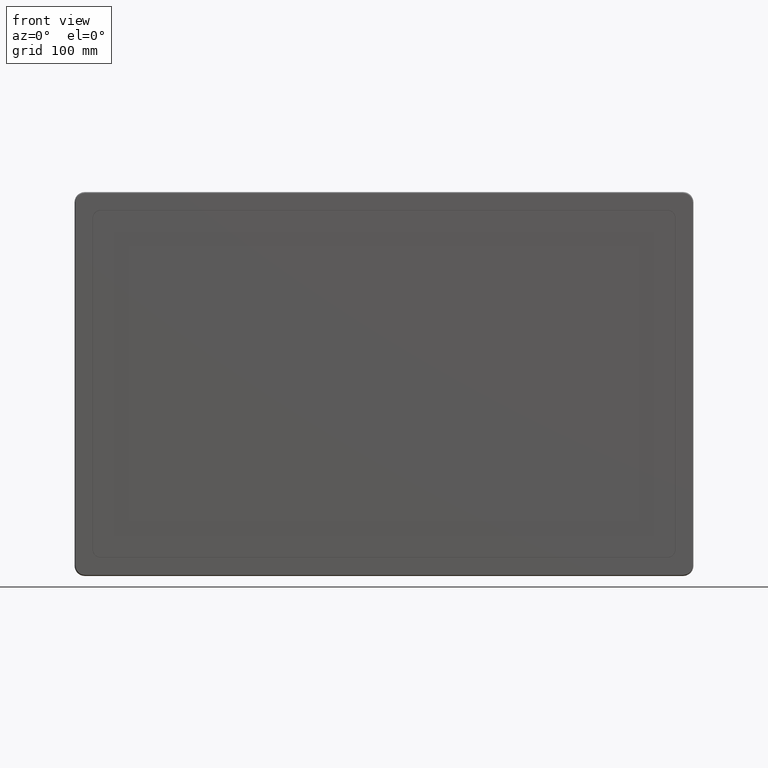
[diagram: clean part render]
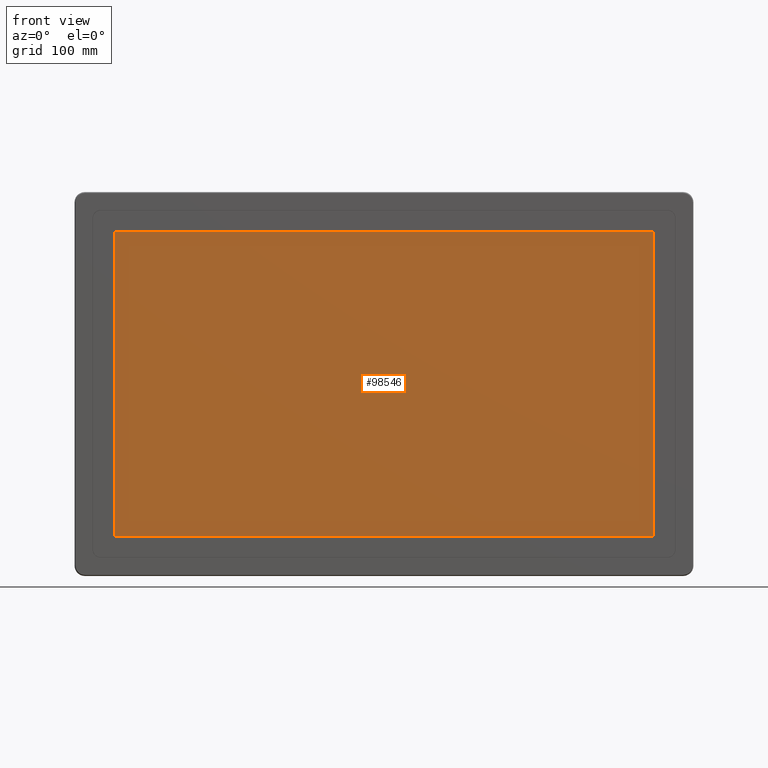
[diagram: same view with one face highlighted and labeled with its STEP entity id]
A machine part, front view. The second image highlights one B-rep face of the part: STEP entity #98546.
In plain terms, the highlighted planar face has unit normal (0, -1, 0).
Its self-contained STEP definition (entity closure, byte-faithful):
#1112 = EDGE_CURVE ( 'NONE', #7493, #70963, #7947, .T. ) ;
#4140 = CARTESIAN_POINT ( 'NONE',  ( -264.0000000000000000, -6.299999999999999822, 0.0000000000000000000 ) ) ;
#5242 = VERTEX_POINT ( 'NONE', #103888 ) ;
#6535 = FACE_OUTER_BOUND ( 'NONE', #25901, .T. ) ;
#7493 = VERTEX_POINT ( 'NONE', #42556 ) ;
#7947 = LINE ( 'NONE', #8521, #59771 ) ;
#8521 = CARTESIAN_POINT ( 'NONE',  ( 264.0000000000000000, -6.299999999999999822, 0.0000000000000000000 ) ) ;
#10041 = EDGE_CURVE ( 'NONE', #70963, #109814, #106728, .T. ) ;
#11216 = DIRECTION ( 'NONE',  ( -1.000000000000000000, 0.0000000000000000000, 0.0000000000000000000 ) ) ;
#12054 = DIRECTION ( 'NONE',  ( 1.000000000000000000, 0.0000000000000000000, 0.0000000000000000000 ) ) ;
#14559 = ORIENTED_EDGE ( 'NONE', *, *, #1112, .F. ) ;
#16873 = LINE ( 'NONE', #4140, #68687 ) ;
#17091 = DIRECTION ( 'NONE',  ( 0.0000000000000000000, 0.0000000000000000000, -1.000000000000000000 ) ) ;
#25513 = ORIENTED_EDGE ( 'NONE', *, *, #10041, .F. ) ;
#25901 = EDGE_LOOP ( 'NONE', ( #25513, #14559, #28189, #53005 ) ) ;
#28189 = ORIENTED_EDGE ( 'NONE', *, *, #44674, .F. ) ;
#28314 = CARTESIAN_POINT ( 'NONE',  ( 0.0000000000000000000, -6.299999999999999822, -148.7500000000000000 ) ) ;
#32170 = CARTESIAN_POINT ( 'NONE',  ( -264.0000000000000000, -6.299999999999999822, -148.7500000000000000 ) ) ;
#42556 = CARTESIAN_POINT ( 'NONE',  ( 264.0000000000000000, -6.299999999999999822, 148.7500000000000000 ) ) ;
#44674 = EDGE_CURVE ( 'NONE', #5242, #7493, #64019, .T. ) ;
#48911 = DIRECTION ( 'NONE',  ( 1.000000000000000000, 0.0000000000000000000, 0.0000000000000000000 ) ) ;
#53005 = ORIENTED_EDGE ( 'NONE', *, *, #104020, .F. ) ;
#59771 = VECTOR ( 'NONE', #17091, 1000.000000000000000 ) ;
#64019 = LINE ( 'NONE', #97803, #105078 ) ;
#68687 = VECTOR ( 'NONE', #72193, 1000.000000000000000 ) ;
#70963 = VERTEX_POINT ( 'NONE', #109775 ) ;
#72193 = DIRECTION ( 'NONE',  ( 0.0000000000000000000, 0.0000000000000000000, 1.000000000000000000 ) ) ;
#74551 = DIRECTION ( 'NONE',  ( 0.0000000000000000000, -1.000000000000000000, 0.0000000000000000000 ) ) ;
#77644 = VECTOR ( 'NONE', #11216, 1000.000000000000000 ) ;
#86507 = CARTESIAN_POINT ( 'NONE',  ( -264.0000000000000000, -6.299999999999999822, -148.7500000000000000 ) ) ;
#92262 = AXIS2_PLACEMENT_3D ( 'NONE', #32170, #74551, #48911 ) ;
#97803 = CARTESIAN_POINT ( 'NONE',  ( 0.0000000000000000000, -6.299999999999999822, 148.7500000000000000 ) ) ;
#98546 = ADVANCED_FACE ( 'NONE', ( #6535 ), #99717, .T. ) ;
#99717 = PLANE ( 'NONE',  #92262 ) ;
#103888 = CARTESIAN_POINT ( 'NONE',  ( -264.0000000000000000, -6.299999999999999822, 148.7500000000000000 ) ) ;
#104020 = EDGE_CURVE ( 'NONE', #109814, #5242, #16873, .T. ) ;
#105078 = VECTOR ( 'NONE', #12054, 1000.000000000000000 ) ;
#106728 = LINE ( 'NONE', #28314, #77644 ) ;
#109775 = CARTESIAN_POINT ( 'NONE',  ( 264.0000000000000000, -6.299999999999999822, -148.7500000000000000 ) ) ;
#109814 = VERTEX_POINT ( 'NONE', #86507 ) ;